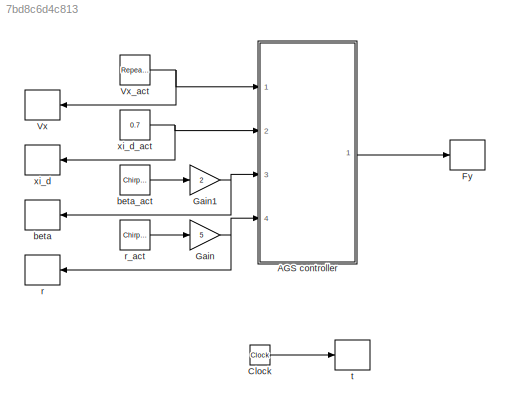
MODEL slx_7bd8c6d4c813
KIND model
CONFIG AbsTol = auto
CONFIG EnableMultiTasking = off
CONFIG FixedStep = auto
CONFIG MaxStep = auto
CONFIG MinStep = auto
CONFIG RelTol = 1e-3
CONFIG SampleTimeConstraint = Unconstrained
CONFIG SolverName = VariableStepAuto
CONFIG StartTime = 0.0
CONFIG StopTime = inf
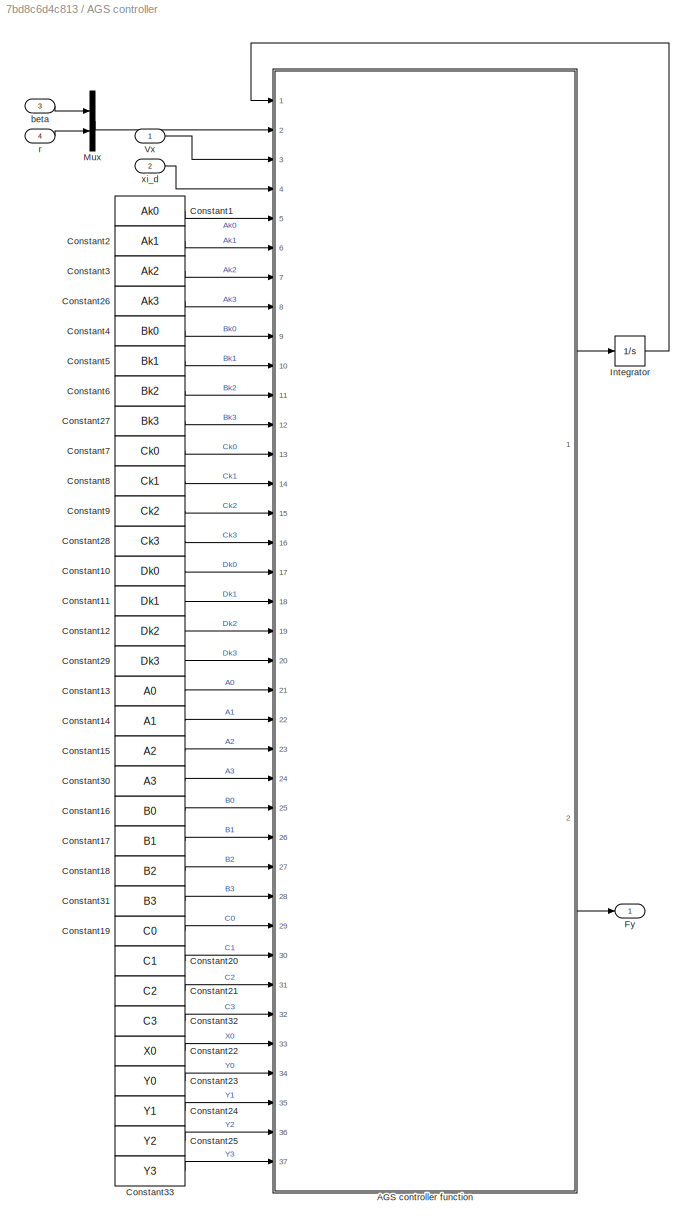
BLOCK [SubSystem] AGS controller
  Ports = [4, 1]
  RequestExecContextInheritance = off
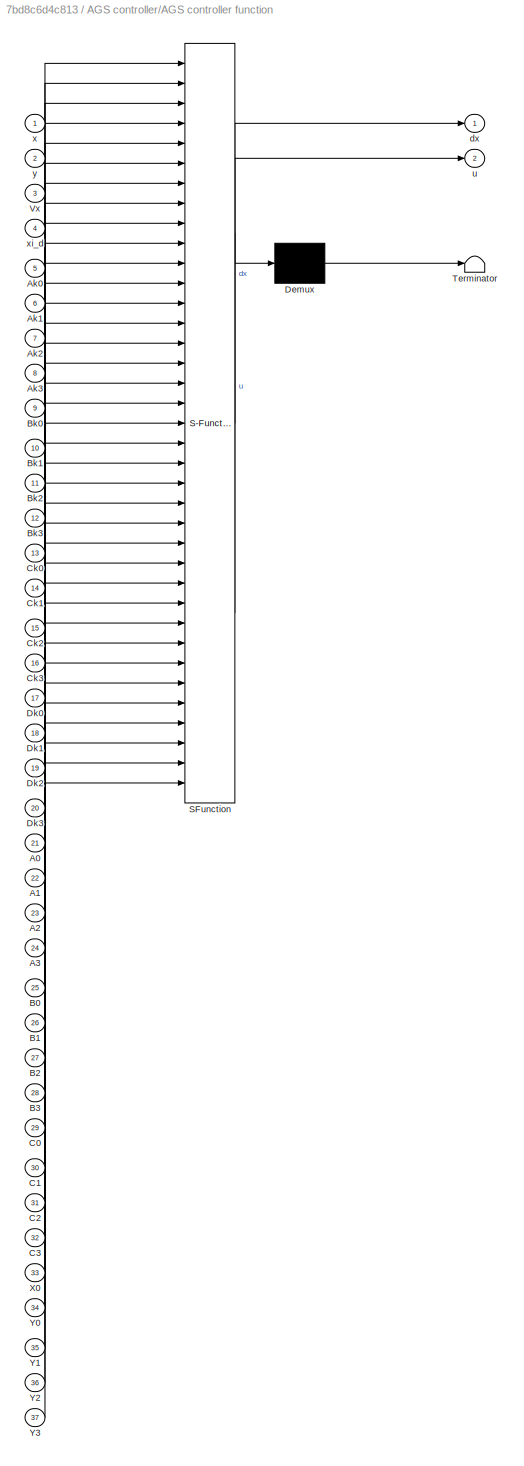
BLOCK [SubSystem] AGS controller/AGS controller function
  ErrorFcn = Stateflow.Translate.translate
  PermitHierarchicalResolution = ExplicitOnly
  Ports = [37, 2]
  RequestExecContextInheritance = off
  SFBlockType = MATLAB Function
  TreatAsAtomicUnit = on
BLOCK [Demux] AGS controller/AGS controller function/ Demux 
  Outputs = 1
  Ports = [1, 1]
BLOCK [S-Function] AGS controller/AGS controller function/ SFunction 
  EnableBusSupport = off
  FunctionName = sf_sfun
  PortCounts = [37 3]
  Ports = [37, 3]
  SFcnIsStateOwnerBlock = off
  SFunctionDeploymentMode = off
  Tag = Stateflow S-Function 6
BLOCK [Terminator] AGS controller/AGS controller function/ Terminator 
BLOCK [Inport] AGS controller/AGS controller function/A0
  Port = 21
BLOCK [Inport] AGS controller/AGS controller function/A1
  Port = 22
BLOCK [Inport] AGS controller/AGS controller function/A2
  Port = 23
BLOCK [Inport] AGS controller/AGS controller function/A3
  Port = 24
BLOCK [Inport] AGS controller/AGS controller function/Ak0
  Port = 5
BLOCK [Inport] AGS controller/AGS controller function/Ak1
  Port = 6
BLOCK [Inport] AGS controller/AGS controller function/Ak2
  Port = 7
BLOCK [Inport] AGS controller/AGS controller function/Ak3
  Port = 8
BLOCK [Inport] AGS controller/AGS controller function/B0
  Port = 25
BLOCK [Inport] AGS controller/AGS controller function/B1
  Port = 26
BLOCK [Inport] AGS controller/AGS controller function/B2
  Port = 27
BLOCK [Inport] AGS controller/AGS controller function/B3
  Port = 28
BLOCK [Inport] AGS controller/AGS controller function/Bk0
  Port = 9
BLOCK [Inport] AGS controller/AGS controller function/Bk1
  Port = 10
BLOCK [Inport] AGS controller/AGS controller function/Bk2
  Port = 11
BLOCK [Inport] AGS controller/AGS controller function/Bk3
  Port = 12
BLOCK [Inport] AGS controller/AGS controller function/C0
  Port = 29
BLOCK [Inport] AGS controller/AGS controller function/C1
  Port = 30
BLOCK [Inport] AGS controller/AGS controller function/C2
  Port = 31
BLOCK [Inport] AGS controller/AGS controller function/C3
  Port = 32
BLOCK [Inport] AGS controller/AGS controller function/Ck0
  Port = 13
BLOCK [Inport] AGS controller/AGS controller function/Ck1
  Port = 14
BLOCK [Inport] AGS controller/AGS controller function/Ck2
  Port = 15
BLOCK [Inport] AGS controller/AGS controller function/Ck3
  Port = 16
BLOCK [Inport] AGS controller/AGS controller function/Dk0
  Port = 17
BLOCK [Inport] AGS controller/AGS controller function/Dk1
  Port = 18
BLOCK [Inport] AGS controller/AGS controller function/Dk2
  Port = 19
BLOCK [Inport] AGS controller/AGS controller function/Dk3
  Port = 20
BLOCK [Inport] AGS controller/AGS controller function/Vx
  Port = 3
BLOCK [Inport] AGS controller/AGS controller function/X0
  Port = 33
BLOCK [Inport] AGS controller/AGS controller function/Y0
  Port = 34
BLOCK [Inport] AGS controller/AGS controller function/Y1
  Port = 35
BLOCK [Inport] AGS controller/AGS controller function/Y2
  Port = 36
BLOCK [Inport] AGS controller/AGS controller function/Y3
  Port = 37
BLOCK [Outport] AGS controller/AGS controller function/dx
BLOCK [Outport] AGS controller/AGS controller function/u
  Port = 2
BLOCK [Inport] AGS controller/AGS controller function/x
BLOCK [Inport] AGS controller/AGS controller function/xi_d
  Port = 4
BLOCK [Inport] AGS controller/AGS controller function/y
  Port = 2
BLOCK [Constant] AGS controller/Constant1
  Value = Ak0
  VectorParams1D = off
BLOCK [Constant] AGS controller/Constant10
  Value = Dk0
  VectorParams1D = off
BLOCK [Constant] AGS controller/Constant11
  Value = Dk1
  VectorParams1D = off
BLOCK [Constant] AGS controller/Constant12
  Value = Dk2
  VectorParams1D = off
BLOCK [Constant] AGS controller/Constant13
  Value = A0
  VectorParams1D = off
BLOCK [Constant] AGS controller/Constant14
  Value = A1
  VectorParams1D = off
BLOCK [Constant] AGS controller/Constant15
  Value = A2
  VectorParams1D = off
BLOCK [Constant] AGS controller/Constant16
  Value = B0
  VectorParams1D = off
BLOCK [Constant] AGS controller/Constant17
  Value = B1
  VectorParams1D = off
BLOCK [Constant] AGS controller/Constant18
  Value = B2
  VectorParams1D = off
BLOCK [Constant] AGS controller/Constant19
  Value = C0
  VectorParams1D = off
BLOCK [Constant] AGS controller/Constant2
  Value = Ak1
  VectorParams1D = off
BLOCK [Constant] AGS controller/Constant20
  Value = C1
  VectorParams1D = off
BLOCK [Constant] AGS controller/Constant21
  Value = C2
  VectorParams1D = off
BLOCK [Constant] AGS controller/Constant22
  Value = X0
  VectorParams1D = off
BLOCK [Constant] AGS controller/Constant23
  Value = Y0
  VectorParams1D = off
BLOCK [Constant] AGS controller/Constant24
  Value = Y1
  VectorParams1D = off
BLOCK [Constant] AGS controller/Constant25
  Value = Y2
  VectorParams1D = off
BLOCK [Constant] AGS controller/Constant26
  Value = Ak3
  VectorParams1D = off
BLOCK [Constant] AGS controller/Constant27
  Value = Bk3
  VectorParams1D = off
BLOCK [Constant] AGS controller/Constant28
  Value = Ck3
  VectorParams1D = off
BLOCK [Constant] AGS controller/Constant29
  Value = Dk3
  VectorParams1D = off
BLOCK [Constant] AGS controller/Constant3
  Value = Ak2
  VectorParams1D = off
BLOCK [Constant] AGS controller/Constant30
  Value = A3
  VectorParams1D = off
BLOCK [Constant] AGS controller/Constant31
  Value = B3
  VectorParams1D = off
BLOCK [Constant] AGS controller/Constant32
  Value = C3
  VectorParams1D = off
BLOCK [Constant] AGS controller/Constant33
  Value = Y3
  VectorParams1D = off
BLOCK [Constant] AGS controller/Constant4
  Value = Bk0
  VectorParams1D = off
BLOCK [Constant] AGS controller/Constant5
  Value = Bk1
  VectorParams1D = off
BLOCK [Constant] AGS controller/Constant6
  Value = Bk2
  VectorParams1D = off
BLOCK [Constant] AGS controller/Constant7
  Value = Ck0
  VectorParams1D = off
BLOCK [Constant] AGS controller/Constant8
  Value = Ck1
  VectorParams1D = off
BLOCK [Constant] AGS controller/Constant9
  Value = Ck2
  VectorParams1D = off
BLOCK [Outport] AGS controller/Fy
BLOCK [Integrator] AGS controller/Integrator
  Ports = [1, 1]
BLOCK [Mux] AGS controller/Mux
  DisplayOption = bar
  Inputs = 2
  Ports = [2, 1]
BLOCK [Inport] AGS controller/Vx
BLOCK [Inport] AGS controller/beta
  Port = 3
BLOCK [Inport] AGS controller/r
  Port = 4
BLOCK [Inport] AGS controller/xi_d
  Port = 2
BLOCK [Clock] Clock
BLOCK [ToWorkspace] Fy
  FixptAsFi = on
  MaxDataPoints = inf
  Ports = [1]
  SampleTime = 0.010000
  Save2DSignal = 2-D array (concatenate along first dimension)
  VariableName = Fy
BLOCK [Gain] Gain
  Gain = 5
BLOCK [Gain] Gain1
  Gain = 2
BLOCK [ToWorkspace] Vx
  FixptAsFi = on
  MaxDataPoints = inf
  Ports = [1]
  SampleTime = 0.010000
  Save2DSignal = 2-D array (concatenate along first dimension)
  VariableName = Vx
BLOCK [Reference] Vx_act  REF=simulink/Sources/Repeating
Sequence
Stair
  Ports = [0, 1]
  SourceBlock = simulink/Sources/Repeating\nSequence\nStair
  SourceProductBaseCode = SL
  SourceType = Repeating Sequence Stair
BLOCK [ToWorkspace] beta
  FixptAsFi = on
  MaxDataPoints = inf
  Ports = [1]
  SampleTime = 0.010000
  Save2DSignal = 2-D array (concatenate along first dimension)
  VariableName = beta
BLOCK [Reference] beta_act  REF=simulink/Sources/Chirp Signal
  Ports = [0, 1]
  SourceBlock = simulink/Sources/Chirp Signal
  SourceProductBaseCode = SL
  SourceType = chirp
BLOCK [ToWorkspace] r
  FixptAsFi = on
  MaxDataPoints = inf
  Ports = [1]
  SampleTime = 0.010000
  Save2DSignal = 2-D array (concatenate along first dimension)
  VariableName = r
BLOCK [Reference] r_act  REF=simulink/Sources/Chirp Signal
  Ports = [0, 1]
  SourceBlock = simulink/Sources/Chirp Signal
  SourceProductBaseCode = SL
  SourceType = chirp
BLOCK [ToWorkspace] t
  FixptAsFi = on
  MaxDataPoints = inf
  Ports = [1]
  SampleTime = 0.010000
  Save2DSignal = 2-D array (concatenate along first dimension)
  VariableName = t
BLOCK [ToWorkspace] xi_d
  FixptAsFi = on
  MaxDataPoints = inf
  Ports = [1]
  SampleTime = 0.010000
  Save2DSignal = 2-D array (concatenate along first dimension)
  VariableName = xi_d
BLOCK [Constant] xi_d_act
  Value = 0.7
LINE AGS controller/AGS controller function:1 -> AGS controller/Integrator:1
LINE AGS controller/AGS controller function:2 -> AGS controller/Fy:1
LINE AGS controller/Constant10:1 -> AGS controller/AGS controller function:17
LINE AGS controller/Constant11:1 -> AGS controller/AGS controller function:18
LINE AGS controller/Constant12:1 -> AGS controller/AGS controller function:19
LINE AGS controller/Constant13:1 -> AGS controller/AGS controller function:21
LINE AGS controller/Constant14:1 -> AGS controller/AGS controller function:22
LINE AGS controller/Constant15:1 -> AGS controller/AGS controller function:23
LINE AGS controller/Constant16:1 -> AGS controller/AGS controller function:25
LINE AGS controller/Constant17:1 -> AGS controller/AGS controller function:26
LINE AGS controller/Constant18:1 -> AGS controller/AGS controller function:27
LINE AGS controller/Constant19:1 -> AGS controller/AGS controller function:29
LINE AGS controller/Constant1:1 -> AGS controller/AGS controller function:5
LINE AGS controller/Constant20:1 -> AGS controller/AGS controller function:30
LINE AGS controller/Constant21:1 -> AGS controller/AGS controller function:31
LINE AGS controller/Constant22:1 -> AGS controller/AGS controller function:33
LINE AGS controller/Constant23:1 -> AGS controller/AGS controller function:34
LINE AGS controller/Constant24:1 -> AGS controller/AGS controller function:35
LINE AGS controller/Constant25:1 -> AGS controller/AGS controller function:36
LINE AGS controller/Constant26:1 -> AGS controller/AGS controller function:8
LINE AGS controller/Constant27:1 -> AGS controller/AGS controller function:12
LINE AGS controller/Constant28:1 -> AGS controller/AGS controller function:16
LINE AGS controller/Constant29:1 -> AGS controller/AGS controller function:20
LINE AGS controller/Constant2:1 -> AGS controller/AGS controller function:6
LINE AGS controller/Constant30:1 -> AGS controller/AGS controller function:24
LINE AGS controller/Constant31:1 -> AGS controller/AGS controller function:28
LINE AGS controller/Constant32:1 -> AGS controller/AGS controller function:32
LINE AGS controller/Constant33:1 -> AGS controller/AGS controller function:37
LINE AGS controller/Constant3:1 -> AGS controller/AGS controller function:7
LINE AGS controller/Constant4:1 -> AGS controller/AGS controller function:9
LINE AGS controller/Constant5:1 -> AGS controller/AGS controller function:10
LINE AGS controller/Constant6:1 -> AGS controller/AGS controller function:11
LINE AGS controller/Constant7:1 -> AGS controller/AGS controller function:13
LINE AGS controller/Constant8:1 -> AGS controller/AGS controller function:14
LINE AGS controller/Constant9:1 -> AGS controller/AGS controller function:15
LINE AGS controller/Integrator:1 -> AGS controller/AGS controller function:1
LINE AGS controller/Mux:1 -> AGS controller/AGS controller function:2
LINE AGS controller/Vx:1 -> AGS controller/AGS controller function:3
LINE AGS controller/beta:1 -> AGS controller/Mux:1
LINE AGS controller/r:1 -> AGS controller/Mux:2
LINE AGS controller/xi_d:1 -> AGS controller/AGS controller function:4
LINE AGS controller:1 -> Fy:1
LINE Clock:1 -> t:1
NET Gain1:1 -> AGS controller:3, beta:1
NET Gain:1 -> AGS controller:4, r:1
NET Vx_act:1 -> AGS controller:1, Vx:1
LINE beta_act:1 -> Gain1:1
LINE r_act:1 -> Gain:1
NET xi_d_act:1 -> AGS controller:2, xi_d:1
note: NET lines group one-source signal fan-out (src -> all destinations, sorted); 1:1 wires keep LINE
CHART AGS controller/AGS controller function states=1 transitions=1
  STATE_LABEL 'eML_blk_kernel()'
  STATE_LABEL 'SCRIPT:\nfunction [dx,u] = AGS_controller(x,y,Vx,xi_d,Ak0,Ak1,Ak2,Ak3,Bk0,Bk1,Bk2,Bk3,Ck0,Ck1,Ck2,Ck3,Dk0,Dk1,Dk2,Dk3,...\n    A0,A1,A2,A3,B0,B1,B2,B3,C0,C1,C2,C3,X0,Y0,Y1,Y2,Y3)\n\n% Compute X and Y\nX = X0;\nY = Y0+Y1/Vx+Y2/Vx^2+Y3*xi_d;\n\n% Compute hat and plant matrices\nAk_hat = Ak0+Ak1/Vx+Ak2/Vx^2+Ak3*xi_d;\nBk_hat = Bk0+Bk1/Vx+Bk2/Vx^2+Bk3*xi_d;\nCk_hat = Ck0+Ck1/Vx+Ck2/Vx^2+Ck3*xi_d;\nDk_hat = Dk0+Dk...<+435ch>'
CHART  states=0 transitions=0
